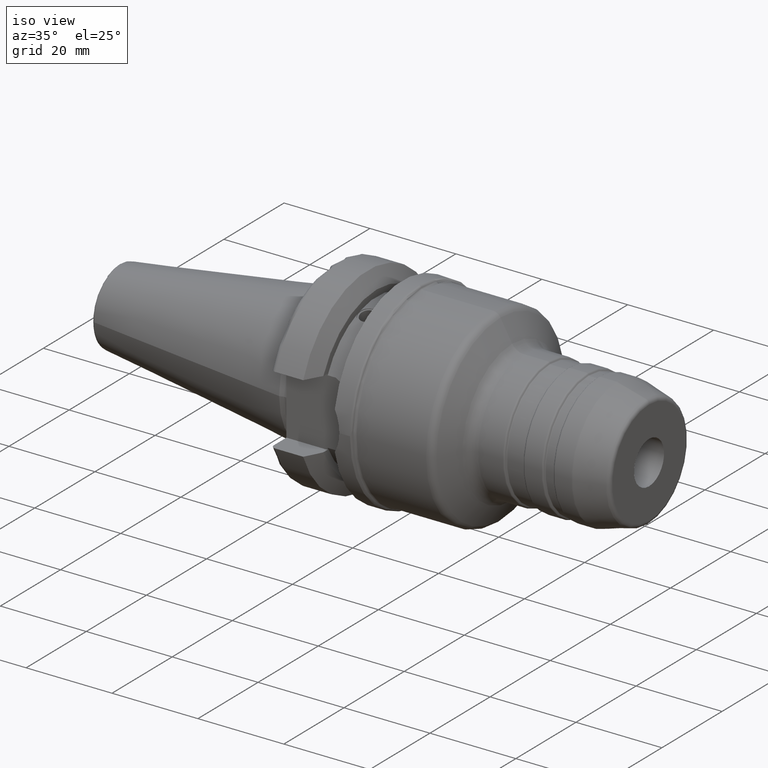
[diagram: clean part render]
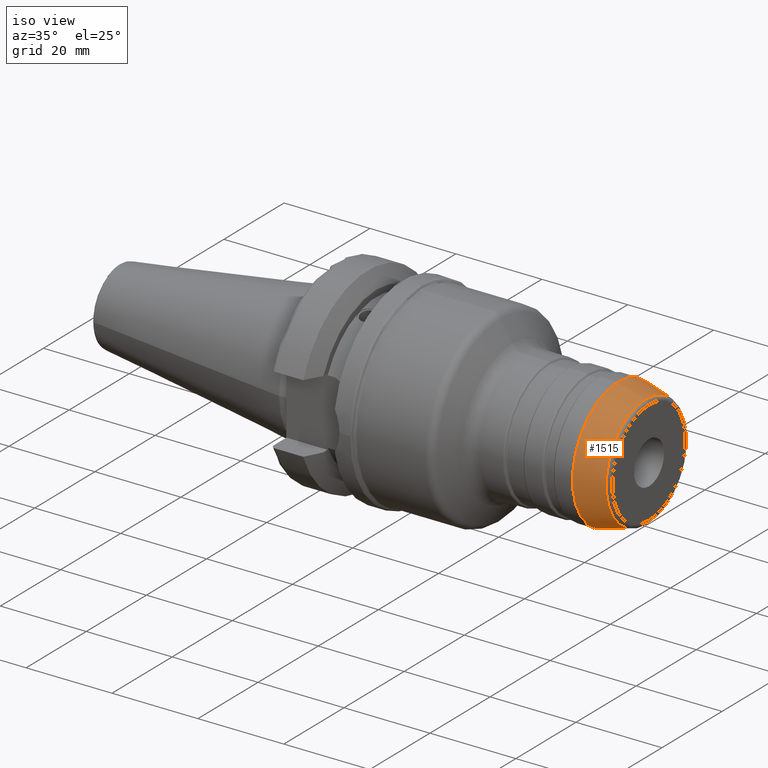
[diagram: same view with one face highlighted and labeled with its STEP entity id]
A machine part, iso view. The second image highlights one B-rep face of the part: STEP entity #1515.
In plain terms, the highlighted conical surface has half-angle 15 deg.
Its self-contained STEP definition (entity closure, byte-faithful):
#105=CONICAL_SURFACE('',#1666,14.,0.261799387799148);
#128=LINE('',#2448,#203);
#203=VECTOR('',#1956,14.);
#327=FACE_OUTER_BOUND('',#422,.T.);
#422=EDGE_LOOP('',(#1080,#1081,#1082,#1083));
#540=CIRCLE('',#1665,13.1985988383101);
#541=CIRCLE('',#1667,14.9659258262891);
#638=VERTEX_POINT('',#2443);
#639=VERTEX_POINT('',#2447);
#804=EDGE_CURVE('',#638,#638,#540,.T.);
#805=EDGE_CURVE('',#638,#639,#128,.T.);
#806=EDGE_CURVE('',#639,#639,#541,.T.);
#1080=ORIENTED_EDGE('',*,*,#804,.F.);
#1081=ORIENTED_EDGE('',*,*,#805,.T.);
#1082=ORIENTED_EDGE('',*,*,#806,.F.);
#1083=ORIENTED_EDGE('',*,*,#805,.F.);
#1515=ADVANCED_FACE('',(#327),#105,.T.);
#1665=AXIS2_PLACEMENT_3D('',#2445,#1952,#1953);
#1666=AXIS2_PLACEMENT_3D('',#2446,#1954,#1955);
#1667=AXIS2_PLACEMENT_3D('',#2449,#1957,#1958);
#1952=DIRECTION('center_axis',(1.,0.,0.));
#1953=DIRECTION('ref_axis',(0.,0.,1.));
#1954=DIRECTION('center_axis',(-1.,0.,0.));
#1955=DIRECTION('ref_axis',(0.,0.,-1.));
#1956=DIRECTION('',(-0.965925826289069,-3.16961915143175E-17,0.25881904510252));
#1957=DIRECTION('center_axis',(-1.,0.,0.));
#1958=DIRECTION('ref_axis',(0.,0.,1.));
#2443=CARTESIAN_POINT('',(74.2588190451025,-1.61636218205664E-15,13.1985988383101));
#2445=CARTESIAN_POINT('Origin',(74.2588190451025,-1.61636218205664E-15,
0.));
#2446=CARTESIAN_POINT('Origin',(71.2679491924311,0.,0.));
#2447=CARTESIAN_POINT('',(67.6630649323773,-1.83279731594416E-15,14.9659258262891));
#2448=CARTESIAN_POINT('',(71.2679491924311,-1.71450551880629E-15,14.));
#2449=CARTESIAN_POINT('Origin',(67.6630649323773,-1.83279731594416E-15,
0.));